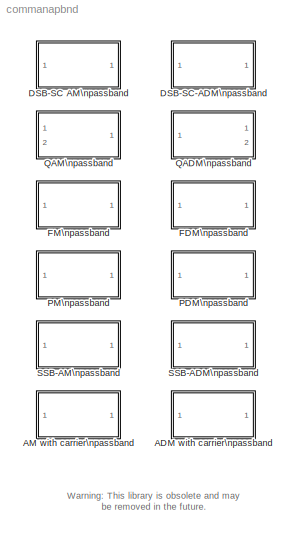
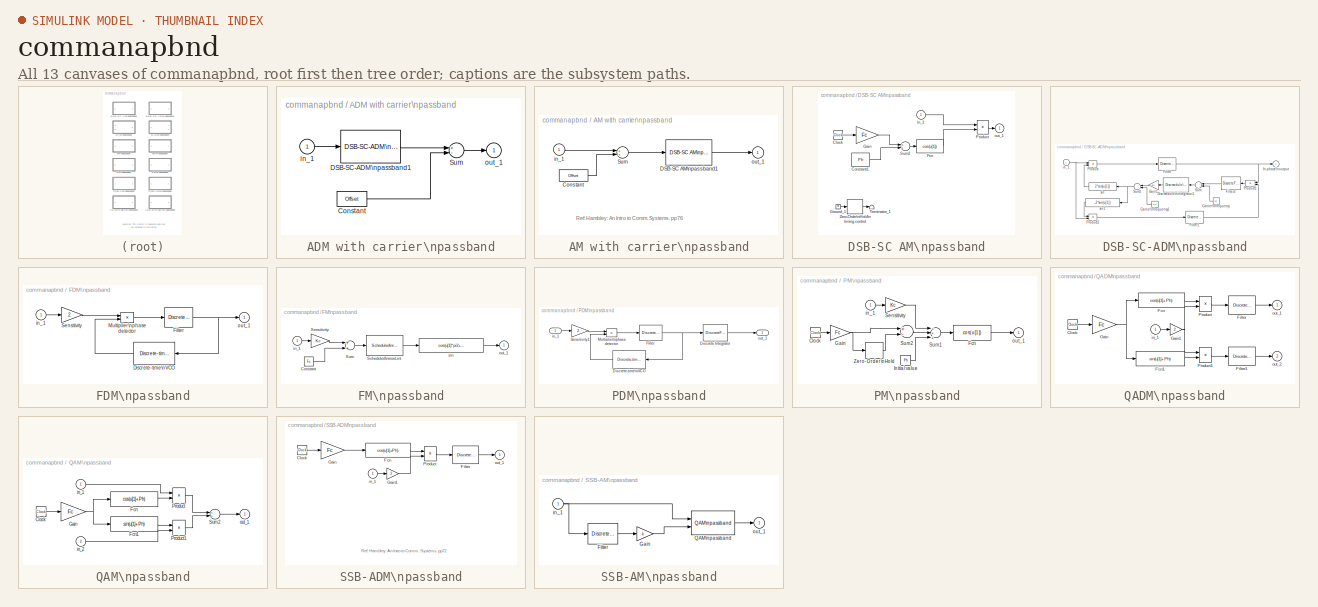
[diagram: thumbnail index - all 13 canvases of the model, root first then tree order]
MODEL commanapbnd
KIND library
BLOCK [SubSystem] ADM with carrier\npassband
  MaskCallbackString = |||||
  MaskDescription = Demodulate an AM with carrier modulated signal.
  MaskDisplay = plot(0,0,100,100,[5+4.5*[0:.3:10] 50 50 50 50+4.5*[0:10]],[85+10*[sin([0:.3:10]*pi/5).*sin([0:.3:10]*pi*2)] 85 99 75 10*sin([0:10]*pi/5)+85]);\ndisp('\\nPassband\\nADM w TC')
  MaskEnableString = on,on,on,on,on,on
  MaskHelp = This block demodulates a DSB-AM with carrier modulated signal. In order to recover the original signal, the offset parameter should be the same as the parameter in the modulation. The demodulation uses a discrete-time lowpass filter that passes the signal message and eliminates the carrier signal.
  MaskIconFrame = on
  MaskIconOpaque = on
  MaskIconRotate = none
  MaskIconUnits = autoscale
  MaskPromptString = Offset factor:|Carrier frequency (Hz):|Initial Phase (rad):|Lowpass filter numerator:|Lowpass filter denominator:|Sample time (sec):
  MaskStyleString = edit,edit,edit,edit,edit,edit
  MaskToolTipString = on,on,on,on,on,on
  MaskTunableValueString = on,on,on,on,on,on
  MaskType = Passband ADM with carrier
  MaskValueString = 1|100|0|[4.57 9.14 4.57]*.01|[1 -1.3108 .4936]|0.001
  MaskVarAliasString = ,,,,,
  MaskVariables = Offset=@1;Fc=@2;Ph=@3;num=@4;den=@5;ts=@6;
  MaskVisibilityString = on,on,on,on,on,on
  Ports = [1, 1]
  TreatAsAtomicUnit = off
BLOCK [Constant] ADM with carrier\npassband/Constant
  Value = Offset
BLOCK [Reference] ADM with carrier\npassband/DSB-SC-ADM\npassband1  REF=commanapbnd/DSB-SC-ADM\npassband
  MaskParam1 = Fc
  MaskParam2 = num
  MaskParam3 = den
  MaskParam4 = Ph
  MaskParam5 = ts
  Ports = [1, 1]
  SourceBlock = commanapbnd/DSB-SC-ADM\npassband
  SourceType = Passband DSB-SC ADM
BLOCK [Sum] ADM with carrier\npassband/Sum
  Inputs = +-
  Ports = [2, 1]
BLOCK [Inport] ADM with carrier\npassband/in_1
BLOCK [Outport] ADM with carrier\npassband/out_1
  InitialOutput = 0
BLOCK [SubSystem] AM with carrier\npassband
  MaskCallbackString = |||
  MaskDescription = Modulate the input signal using amplitude modulation with transmission carrier method.
  MaskDisplay = plot(0,0,100,100,[4.5*[0:10]+5 50 50 50 50+4.5*[0:.3:10]],[10*sin([0:10]*pi/5)+85 85 99 75 85+10*[sin([0:.3:10]*pi/5).*sin([0:.3:10]*pi*2)]]);\ndisp('\\nPassband\\nAM w TC')
  MaskEnableString = on,on,on,on
  MaskHelp = This block shifts the amplitude of the input signal before the modulation. AM with carrier is a simple technique but not an energy-efficient one.
  MaskIconFrame = on
  MaskIconOpaque = on
  MaskIconRotate = none
  MaskIconUnits = autoscale
  MaskPromptString = Input signal offset:|Carrier frequency (Hz):|Initial phase (rad):|Sample time (sec)
  MaskStyleString = edit,edit,edit,edit
  MaskToolTipString = on,on,on,on
  MaskTunableValueString = on,on,on,on
  MaskType = Passband AM with carrier
  MaskValueString = 1|100|0|0.001
  MaskVarAliasString = ,,,
  MaskVariables = Offset=@1;Fc=@2;Ph=@3;ts=@4;
  MaskVisibilityString = on,on,on,on
  Ports = [1, 1]
  TreatAsAtomicUnit = off
BLOCK [Constant] AM with carrier\npassband/Constant
  Value = Offset
BLOCK [Reference] AM with carrier\npassband/DSB-SC AM\npassband1  REF=commanapbnd/DSB-SC AM\npassband
  MaskParam1 = Fc
  MaskParam2 = Ph
  MaskParam3 = ts
  Ports = [1, 1]
  SourceBlock = commanapbnd/DSB-SC AM\npassband
  SourceType = Passband DSB-SC AM
BLOCK [Sum] AM with carrier\npassband/Sum
  Ports = [2, 1]
BLOCK [Inport] AM with carrier\npassband/in_1
BLOCK [Outport] AM with carrier\npassband/out_1
  InitialOutput = 0
BLOCK [SubSystem] DSB-SC AM\npassband
  MaskCallbackString = ||
  MaskDescription = Modulate the input signal using\nDSB-SC AM method.
  MaskDisplay = plot(0,0,100,100,[4.5*[0:10]+5 50 50 50 50+4.5*[0:.3:10]],[10*sin([0:10]*pi/5)+85 85 99 75 85+10*[sin([0:.3:10]*pi/5).*sin([0:.3:10]*pi*2)]]);\ndisp('\\nPassband\\nDSB AM')
  MaskEnableString = on,on,on
  MaskHelp = This block modulates the input signal using the double-sideband suppressed-carrier amplitude modulation. In general, the carrier frequency should be much higher than the message signal frequency.
  MaskIconFrame = on
  MaskIconOpaque = on
  MaskIconRotate = none
  MaskIconUnits = autoscale
  MaskInitialization = Fc=@1;Ph=@2;ts=@3;Fc=Fc*2*pi;\n\n
  MaskPromptString = Carrier frequency (Hz):|Initial Phase (rad):|Sample time (sec):
  MaskStyleString = edit,edit,edit
  MaskToolTipString = on,on,on
  MaskTunableValueString = on,on,on
  MaskType = Passband DSB-SC AM
  MaskValueString = 100|pi/2|0.001
  MaskVarAliasString = ,,
  MaskVisibilityString = on,on,on
  Ports = [1, 1]
  TreatAsAtomicUnit = off
BLOCK [Clock] DSB-SC AM\npassband/Clock
  Decimation = 10
BLOCK [Constant] DSB-SC AM\npassband/Constant1
  Value = Ph
BLOCK [Fcn] DSB-SC AM\npassband/Fcn
  Expr = cos(u[1])
BLOCK [Gain] DSB-SC AM\npassband/Gain
  Gain = Fc
BLOCK [Ground] DSB-SC AM\npassband/Ground_1
BLOCK [Product] DSB-SC AM\npassband/Product
  Ports = [2, 1]
BLOCK [Sum] DSB-SC AM\npassband/Sum2
  Ports = [2, 1]
BLOCK [Terminator] DSB-SC AM\npassband/Terminator_1
BLOCK [ZeroOrderHold] DSB-SC AM\npassband/Zero-Order\nHold\ntiming control
  SampleTime = ts
BLOCK [Inport] DSB-SC AM\npassband/in_1
BLOCK [Outport] DSB-SC AM\npassband/out_1
  InitialOutput = 0
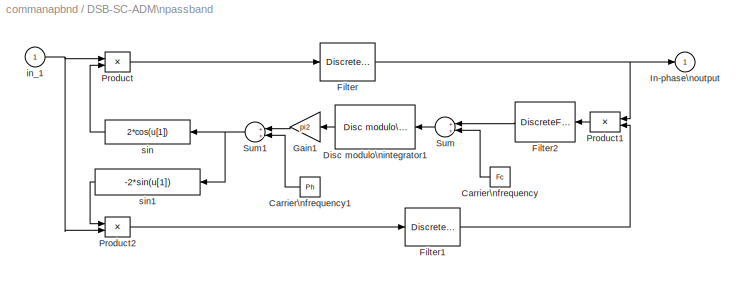
BLOCK [SubSystem] DSB-SC-ADM\npassband
  MaskCallbackString = ||||
  MaskDescription = Demodulate a DSB-SC AM modulated signal.
  MaskDisplay = plot(0,0,100,100,[5+4.5*[0:.3:10] 50 50 50 50+4.5*[0:10]],[85+10*[sin([0:.3:10]*pi/5).*sin([0:.3:10]*pi*2)] 85 99 75 10*sin([0:10]*pi/5)+85]);						\ndisp('\\nPassband\\nDSB ADM')
  MaskEnableString = on,on,on,on,on
  MaskHelp = This block demodulates a DSB-SC-AM modulated signal using Costas phase-locked loop method. This block uses a discrete-time lowpass filter that passes the signal message and eliminates the carrier signal.
  MaskIconFrame = on
  MaskIconOpaque = on
  MaskIconRotate = none
  MaskIconUnits = autoscale
  MaskInitialization = Fc=@1;num=@2;den=@3;Ph=@4;ts=@5;pi2=pi*2;\n\n\n
  MaskPromptString = Carrier frequency (Hz):|Lowpass filter numerator:|Lowpass filter denominator:|Initial phase (rad):|Sample time (sec):
  MaskStyleString = edit,edit,edit,edit,edit
  MaskToolTipString = on,on,on,on,on
  MaskTunableValueString = on,on,on,on,on
  MaskType = Passband DSB-SC ADM
  MaskValueString = 100|[4.57 9.14 4.57]*.01|[1 -1.3108 .4936]|pi/2|0.001
  MaskVarAliasString = ,,,,
  MaskVisibilityString = on,on,on,on,on
  Ports = [1, 1]
  TreatAsAtomicUnit = off
BLOCK [Constant] DSB-SC-ADM\npassband/Carrier\nfrequency
  MaskIconFrame = on
  MaskIconOpaque = on
  MaskIconRotate = none
  MaskIconUnits = autoscale
  Value = Fc
BLOCK [Constant] DSB-SC-ADM\npassband/Carrier\nfrequency1
  MaskIconFrame = on
  MaskIconOpaque = on
  MaskIconRotate = none
  MaskIconUnits = autoscale
  Value = Ph
BLOCK [Reference] DSB-SC-ADM\npassband/Disc modulo\nintegrator1  REF=commutil/Disc modulo\nintegrator
  Ports = [1, 1]
  SourceBlock = commutil/Disc modulo\nintegrator
  SourceType = Discrete-time modulo integrator
  init = 0
  modu = 1
  ts = ts
BLOCK [DiscreteFilter] DSB-SC-ADM\npassband/Filter
  Denominator = den
  Numerator = num
  SampleTime = ts
BLOCK [DiscreteFilter] DSB-SC-ADM\npassband/Filter1
  Denominator = den
  Numerator = num
  SampleTime = ts
BLOCK [DiscreteFilter] DSB-SC-ADM\npassband/Filter2
  Denominator = den
  MaskIconFrame = on
  MaskIconOpaque = on
  MaskIconRotate = none
  MaskIconUnits = autoscale
  Numerator = num
  SampleTime = ts
BLOCK [Gain] DSB-SC-ADM\npassband/Gain1
  Gain = pi2
  MaskIconFrame = on
  MaskIconOpaque = on
  MaskIconRotate = none
  MaskIconUnits = autoscale
BLOCK [Outport] DSB-SC-ADM\npassband/In-phase\noutput
  InitialOutput = 0
BLOCK [Product] DSB-SC-ADM\npassband/Product
  Ports = [2, 1]
BLOCK [Product] DSB-SC-ADM\npassband/Product1
  MaskIconFrame = on
  MaskIconOpaque = on
  MaskIconRotate = none
  MaskIconUnits = autoscale
  Ports = [2, 1]
BLOCK [Product] DSB-SC-ADM\npassband/Product2
  Ports = [2, 1]
BLOCK [Sum] DSB-SC-ADM\npassband/Sum
  MaskIconFrame = on
  MaskIconOpaque = on
  MaskIconRotate = none
  MaskIconUnits = autoscale
  Ports = [2, 1]
BLOCK [Sum] DSB-SC-ADM\npassband/Sum1
  MaskIconFrame = on
  MaskIconOpaque = on
  MaskIconRotate = none
  MaskIconUnits = autoscale
  Ports = [2, 1]
BLOCK [Inport] DSB-SC-ADM\npassband/in_1
BLOCK [Fcn] DSB-SC-ADM\npassband/sin
  Expr = 2*cos(u[1])
  MaskIconFrame = on
  MaskIconOpaque = on
  MaskIconRotate = none
  MaskIconUnits = autoscale
BLOCK [Fcn] DSB-SC-ADM\npassband/sin1
  Expr = -2*sin(u[1])
  MaskIconFrame = on
  MaskIconOpaque = on
  MaskIconRotate = none
  MaskIconUnits = autoscale
BLOCK [SubSystem] FDM\npassband
  MaskCallbackString = |||||
  MaskDescription = Demodulate an FM modulated signal using a phase-locked loop.
  MaskDisplay = plot(0,0,100,100,[5+4.5*[0:.15:10] 50 50 50 50+4.5*[0:10]],[85+10*[sin([0:.15:10]*pi*2+cumsum(sin([0:.15:10]*pi/5))/2)] 85 99 75   10*sin([0:10]*pi/5)+85]);\ndisp('\\nPassband\\nFDM')
  MaskEnableString = on,on,on,on,on,on
  MaskHelp = This block recovers a FM modulated signal using a phase-locked loop method. The phase detector used in this block is a multiplier.
  MaskIconFrame = on
  MaskIconOpaque = on
  MaskIconRotate = none
  MaskIconUnits = autoscale
  MaskInitialization = Ph=Ph+pi/2;\n\n
  MaskPromptString = Carrier frequency (Hz):|Initial phase (rad):|Modulation constant (Hertz per volt):|Lowpass filter numerator:|Lowpass filter denominator:|Sample time (sec):
  MaskStyleString = edit,edit,edit,edit,edit,edit
  MaskToolTipString = on,on,on,on,on,on
  MaskTunableValueString = on,on,on,on,on,on
  MaskType = Passband FDM
  MaskValueString = 100|0|1|[4.57 9.14 4.57]*.01|[1 -1.3108 .4936]|0.001
  MaskVarAliasString = ,,,,,
  MaskVariables = Fc=@1;Ph=@2;HzPerVolt=@3;num=@4;den=@5;ts=@6;
  MaskVisibilityString = on,on,on,on,on,on
  Ports = [1, 1]
  TreatAsAtomicUnit = off
BLOCK [Reference] FDM\npassband/Discrete-time\nVCO  REF=commutil/Discrete-time\nVCO
  Ac = 1
  Fc = Fc
  Kc = HzPerVolt
  Ph = Ph
  Ports = [1, 1]
  SourceBlock = commutil/Discrete-time\nVCO
  SourceType = Voltage-controlled oscillator
  ts = ts
BLOCK [DiscreteFilter] FDM\npassband/Filter
  Denominator = den
  Numerator = num
  SampleTime = ts
BLOCK [Product] FDM\npassband/Multiplier\nphase detector
  Ports = [2, 1]
BLOCK [Gain] FDM\npassband/Sensitivity
  Gain = 2
BLOCK [Inport] FDM\npassband/in_1
BLOCK [Outport] FDM\npassband/out_1
  InitialOutput = 0
BLOCK [SubSystem] FM\npassband
  MaskCallbackString = ||||
  MaskDescription = Modulate the input signal using FM method.
  MaskDisplay = plot(0,0,100,100,[4.5*[0:10]+5 50 50 50 50+4.5*[0:.15:10]],[10*sin([0:10]*pi/5)+85 85 99 75 85+10*[sin([0:.15:10]*pi*2+cumsum(sin([0:.15:10]*pi/5))/2)]]);\ndisp('\\nPassband\\nFM')
  MaskEnableString = on,on,on,on,on
  MaskHelp = This block modulates the input signal using frequency modulation method. The frequency of the output of the carrier signal depends on the amplitude of the input signal.
  MaskIconFrame = on
  MaskIconOpaque = on
  MaskIconRotate = none
  MaskIconUnits = autoscale
  MaskInitialization = Kc=HzPerV;pi2=2*pi;if isinf(td),td=realmax;end;\n
  MaskPromptString = Carrier frequency (Hz):|Initial phase (rad):|Modulation constant (Hertz per volt):|Sample time (sec):|Symbol interval (sec; Use Inf for analog mod);
  MaskStyleString = edit,edit,edit,edit,edit
  MaskToolTipString = on,on,on,on,on
  MaskTunableValueString = on,on,on,on,on
  MaskType = Passband FM
  MaskValueString = 100|0|1|0.001|Inf
  MaskVarAliasString = ,,,,
  MaskVariables = Fc=@1;Ph=@2;HzPerV=@3;ts=@4;td=@5;
  MaskVisibilityString = on,on,on,on,on
  Ports = [1, 1]
  TreatAsAtomicUnit = off
BLOCK [Constant] FM\npassband/Constant
  Value = Fc
BLOCK [Reference] FM\npassband/Scheduled\nreset-int  REF=commutil/Scheduled\nreset-int
  Ports = [1, 1]
  SourceBlock = commutil/Scheduled\nreset-int
  SourceType = Scheduled reset integration
  limit = Inf/2
  td = td
  ts = ts
BLOCK [Gain] FM\npassband/Sensitivity
  Gain = Kc
BLOCK [Sum] FM\npassband/Sum
  Ports = [2, 1]
BLOCK [Inport] FM\npassband/in_1
BLOCK [Outport] FM\npassband/out_1
  InitialOutput = 0
BLOCK [Fcn] FM\npassband/sin
  Expr = cos(u[1]*pi2+Ph)
BLOCK [SubSystem] PDM\npassband
  MaskCallbackString = ||||||
  MaskDescription = Demodulate a PM modulated signal using a phase locked loop.
  MaskDisplay = plot(0,0,100,100,[5+4.5*[0:.15:10] 50 50 50 50+4.5*[0:10]],[85+10*[sin([0:.15:10]*pi*2+cumsum(sin([0:.15:10]*pi/5))/2)] 85 99 75   10*sin([0:10]*pi/5)+85]);\ndisp('\\nPassband\\nPDM')
  MaskEnableString = on,on,on,on,on,on,on
  MaskHelp = This block recovers a PM modulated signal. This block uses a multiplier phase detector in PLL. This block uses a discrete-time lowpass filter which passes the signal message and eliminates the carrier signal.
  MaskIconFrame = on
  MaskIconOpaque = on
  MaskIconRotate = none
  MaskIconUnits = autoscale
  MaskInitialization = Ph=Ph+pi/2;\nKv=2*pi*HzPerVolt;\n
  MaskPromptString = Carrier frequency (Hz):|Initial phase (rad):|Modulation constant (Radians per volt):|Lowpass filter numerator:|Lowpass filter denominator:|VCO Gain (Hertz per volt):|Sample time (sec):
  MaskStyleString = edit,edit,edit,edit,edit,edit,edit
  MaskToolTipString = on,on,on,on,on,on,on
  MaskTunableValueString = on,on,on,on,on,on,on
  MaskType = Passband PDM
  MaskValueString = 100|0|1|[4.57 9.14 4.57]*.01|[1 -1.3108 .4936]|1|0.001
  MaskVarAliasString = ,,,,,,
  MaskVariables = Fc=@1;Ph=@2;Kc=@3;num=@4;den=@5;HzPerVolt=@6;ts=@7;
  MaskVisibilityString = on,on,on,on,on,on,on
  Ports = [1, 1]
  TreatAsAtomicUnit = off
BLOCK [DiscreteFilter] PDM\npassband/Discrete Integrator
  Denominator = [1 -1]*Kc
  Numerator = Kv*ts(1)
  SampleTime = ts
BLOCK [Reference] PDM\npassband/Discrete-time\nVCO  REF=commutil/Discrete-time\nVCO
  Ac = 1
  Fc = Fc
  Kc = HzPerVolt
  Ph = Ph
  Ports = [1, 1]
  SourceBlock = commutil/Discrete-time\nVCO
  SourceType = Voltage-controlled oscillator
  ts = ts
BLOCK [DiscreteFilter] PDM\npassband/Filter
  Denominator = den
  Numerator = num
  SampleTime = ts
BLOCK [Product] PDM\npassband/Multiplier\nphase detector
  Ports = [2, 1]
BLOCK [Gain] PDM\npassband/Sensitivity1
  Gain = 2
BLOCK [Inport] PDM\npassband/in_1
BLOCK [Outport] PDM\npassband/out_1
  InitialOutput = 0
BLOCK [SubSystem] PM\npassband
  MaskCallbackString = |||
  MaskDescription = Modulate the input signal using PM method.
  MaskDisplay = plot(0,0,100,100,[4.5*[0:10]+5 50 50 50 50+4.5*[0:.15:10]],[10*sin([0:10]*pi/5)+85 85 99 75 85+10*[sin([0:.15:10]*pi*2+cumsum(sin([0:.15:10]*pi/5))/2)]]);\ndisp('\\nPassband\\nPM')
  MaskEnableString = on,on,on,on
  MaskHelp = The PM block causes the change of the carrier signal depending on the input signal voltage.
  MaskIconFrame = on
  MaskIconOpaque = on
  MaskIconRotate = none
  MaskIconUnits = autoscale
  MaskInitialization = Fc=Fc*2*pi;if isinf(td),td=realmax;end;\n
  MaskPromptString = Carrier frequency (Hz):|Initial phase (rad):|Modulation constant (Radians per volt):|Symbol interval (sec, Use inf for analog case):
  MaskStyleString = edit,edit,edit,edit
  MaskToolTipString = on,on,on,on
  MaskTunableValueString = on,on,on,on
  MaskType = Passband PM
  MaskValueString = 100|0|1|Inf
  MaskVarAliasString = ,,,
  MaskVariables = Fc=@1;Ph=@2;Kc=@3;td=@4;
  MaskVisibilityString = on,on,on,on
  Ports = [1, 1]
  TreatAsAtomicUnit = off
BLOCK [Clock] PM\npassband/Clock
  Decimation = 10
BLOCK [Fcn] PM\npassband/Fcn
  Expr = cos(u[1])
BLOCK [Gain] PM\npassband/Gain
  Gain = Fc
BLOCK [Constant] PM\npassband/Initial value
  Value = Ph
BLOCK [Gain] PM\npassband/Sensitivity
  Gain = Kc
BLOCK [Sum] PM\npassband/Sum1
  Inputs = +++
  Ports = [3, 1]
BLOCK [Sum] PM\npassband/Sum2
  Inputs = +-
  Ports = [2, 1]
BLOCK [ZeroOrderHold] PM\npassband/Zero-Order\nHold
  SampleTime = td
BLOCK [Inport] PM\npassband/in_1
BLOCK [Outport] PM\npassband/out_1
  InitialOutput = 0
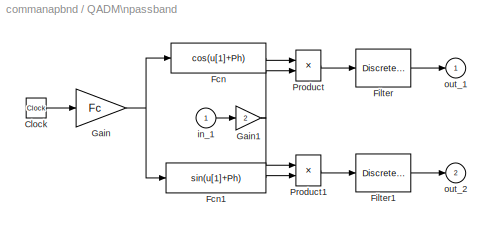
BLOCK [SubSystem] QADM\npassband
  MaskCallbackString = ||||
  MaskDescription = Demodulate a DSB-SC QAM modulated signal into in-phase and quadrature components.
  MaskDisplay = plot(0,0,100,100,[5+4.5*[0:.3:10] 50 50 50 50+4.5*[0:10]],[85+10*[sin([0:.3:10]*pi/5).*sin([0:.3:10]*pi*2)] 85 99 75 10*sin([0:10]*pi/5)+85]);\ndisp('\\nPassband\\nQADM')
  MaskEnableString = on,on,on,on,on
  MaskHelp = This block demodulates the QM-DSB-SC-AM modulated signal. The first output port outputs the in-phase component and the second port outputs the quadrature component. The demodulation uses a discrete-time lowpass filter that passes the signal message and eliminates the carrier signal.
  MaskIconFrame = on
  MaskIconOpaque = on
  MaskIconRotate = none
  MaskIconUnits = autoscale
  MaskInitialization = Fc=Fc*2*pi;\n
  MaskPromptString = Carrier frequency (Hz):|Lowpass filter numerator:|Lowpass filter denominator:|Initial phase (rad):|Sample time (sec):
  MaskStyleString = edit,edit,edit,edit,edit
  MaskToolTipString = on,on,on,on,on
  MaskTunableValueString = on,on,on,on,on
  MaskType = Passband DSB-SC QADM
  MaskValueString = 100|[4.57 9.14 4.57]*.01|[1 -1.3108 .4936]|0|0.001
  MaskVarAliasString = ,,,,
  MaskVariables = Fc=@1;num=@2;den=@3;Ph=@4;ts=@5;
  MaskVisibilityString = on,on,on,on,on
  Ports = [1, 2]
  TreatAsAtomicUnit = off
BLOCK [Clock] QADM\npassband/Clock
  Decimation = 10
BLOCK [Fcn] QADM\npassband/Fcn
  Expr = cos(u[1]+Ph)
BLOCK [Fcn] QADM\npassband/Fcn1
  Expr = sin(u[1]+Ph)
BLOCK [DiscreteFilter] QADM\npassband/Filter
  Denominator = den
  Numerator = num
  SampleTime = ts
BLOCK [DiscreteFilter] QADM\npassband/Filter1
  Denominator = den
  Numerator = num
  SampleTime = ts
BLOCK [Gain] QADM\npassband/Gain
  Gain = Fc
BLOCK [Gain] QADM\npassband/Gain1
  Gain = 2
BLOCK [Product] QADM\npassband/Product
  Ports = [2, 1]
BLOCK [Product] QADM\npassband/Product1
  Ports = [2, 1]
BLOCK [Inport] QADM\npassband/in_1
BLOCK [Outport] QADM\npassband/out_1
  InitialOutput = 0
BLOCK [Outport] QADM\npassband/out_2
  InitialOutput = 0
  Port = 2
BLOCK [SubSystem] QAM\npassband
  MaskCallbackString = ||
  MaskDescription = Modulate the in-phase signal from first input port and quadrature signal from the second port using QAM.
  MaskDisplay = plot(0,0,100,100,[4.5*[0:10]+5 50 50 50 50+4.5*[0:.3:10]],[10*sin([0:10]*pi/5)+85 85 99 75 85+10*[sin([0:.3:10]*pi/5).*sin([0:.3:10]*pi*2)]]);\ndisp('\\nPassband\\nQAM')
  MaskEnableString = on,on,on
  MaskHelp = This block modulates the in-phase component input from the first port and the quadrature component input from the second port by using two orthogonal sinusoidal carriers.
  MaskIconFrame = on
  MaskIconOpaque = on
  MaskIconRotate = none
  MaskIconUnits = autoscale
  MaskInitialization = Fc=Fc*2*pi;\n\n\n
  MaskPromptString = Carrier frequency (Hz):|Initial phase (rad):|Sample time (sec):
  MaskStyleString = edit,edit,edit
  MaskToolTipString = on,on,on
  MaskTunableValueString = on,on,on
  MaskType = Passband DSB-SC QAM
  MaskValueString = 100|0|0.001
  MaskVarAliasString = ,,
  MaskVariables = Fc=@1;Ph=@2;ts=@3;
  MaskVisibilityString = on,on,on
  Ports = [2, 1]
  TreatAsAtomicUnit = off
BLOCK [Clock] QAM\npassband/Clock
  Decimation = 10
BLOCK [Fcn] QAM\npassband/Fcn
  Expr = cos(u[1]+Ph)
BLOCK [Fcn] QAM\npassband/Fcn1
  Expr = sin(u[1]+Ph)
BLOCK [Gain] QAM\npassband/Gain
  Gain = Fc
BLOCK [Product] QAM\npassband/Product
  Ports = [2, 1]
BLOCK [Product] QAM\npassband/Product1
  Ports = [2, 1]
BLOCK [Sum] QAM\npassband/Sum2
  Ports = [2, 1]
BLOCK [Inport] QAM\npassband/in_1
BLOCK [Inport] QAM\npassband/in_2
  Port = 2
BLOCK [Outport] QAM\npassband/out_1
  InitialOutput = 0
BLOCK [SubSystem] SSB-ADM\npassband
  MaskCallbackString = ||||
  MaskDescription = Demodulate a SSB-AM modulated signal.
  MaskDisplay = plot(0,0,100,100,[5+4.5*[0:.3:10] 50 50 50 50+4.5*[0:10]],[85+10*[sin([0:.3:10]*pi/5).*sin([0:.3:10]*pi*2)] 85 99 75 10*sin([0:10]*pi/5)+85]);\ndisp('\\nPassband\\nSSB ADM')
  MaskEnableString = on,on,on,on,on
  MaskHelp = This block demodulates the SSB-SC-AM modulated signal. The demodulation uses a discrete-time lowpass filter that passes the signal message and eliminates the carrier signal. You can specify the modulation to be a USB or LSB modulation.
  MaskIconFrame = on
  MaskIconOpaque = on
  MaskIconRotate = none
  MaskIconUnits = autoscale
  MaskInitialization = Fc=@1;num=@2;den=@3;Ph=@4;ts=@5;Fc=Fc*2*pi;Pg=Ph+pi/2;\n
  MaskPromptString = Carrier frequency (Hz):|Lowpass filter numerator:|Lowpass filter denominator:|Initial phase (rad):|Sample time (sec):
  MaskStyleString = edit,edit,edit,edit,edit
  MaskToolTipString = on,on,on,on,on
  MaskTunableValueString = on,on,on,on,on
  MaskType = Passband SSB ADM
  MaskValueString = 100|[4.57 9.14 4.57]*.01|[1 -1.3108 .4936]|0|0.001
  MaskVarAliasString = ,,,,
  MaskVisibilityString = on,on,on,on,on
  Ports = [1, 1]
  TreatAsAtomicUnit = off
BLOCK [Clock] SSB-ADM\npassband/Clock
  Decimation = 10
BLOCK [Fcn] SSB-ADM\npassband/Fcn
  Expr = cos(u[1]+Ph)
BLOCK [DiscreteFilter] SSB-ADM\npassband/Filter
  Denominator = den
  Numerator = num
  SampleTime = ts
BLOCK [Gain] SSB-ADM\npassband/Gain
  Gain = Fc
BLOCK [Gain] SSB-ADM\npassband/Gain1
  Gain = 2
BLOCK [Product] SSB-ADM\npassband/Product
  Ports = [2, 1]
BLOCK [Inport] SSB-ADM\npassband/in_1
BLOCK [Outport] SSB-ADM\npassband/out_1
  InitialOutput = 0
BLOCK [SubSystem] SSB-AM\npassband
  MaskCallbackString = |||||
  MaskDescription = Modulate the input signal using single-sideband amplitude modulation method with Hilbert transform filter.
  MaskDisplay = plot(0,0,100,100,[4.5*[0:10]+5 50 50 50 50+4.5*[0:.3:10]],[10*sin([0:10]*pi/5)+85 85 99 75 85+10*[sin([0:.3:10]*pi/5).*sin([0:.3:10]*pi*2)]]);\ndisp('\\nPassband\\nSSB AM')
  MaskEnableString = on,on,on,on,on,on
  MaskHelp = This block modulates the input signal using the SSB-AM method. The block uses Hilbert transfer filter. Hilbert transform filter is a non-causal filter. A positive time delay is requested in the implementation. You can specify the modulation to be an USB or LSB modulation.
  MaskIconFrame = on
  MaskIconOpaque = on
  MaskIconRotate = none
  MaskIconUnits = autoscale
  MaskInitialization = if ban>1/ts, ban=1/ts-ts;end;[num,den]=hilbiir(ts,dly,ban);pi2=2*pi;pih=pi/2;k=-1;if sd(1)=='l',k=1;end;\n
  MaskPromptString = Carrier frequency (Hz):|Initial Phase (rad):|Bandwidth of the input signal (Hz):|Time delay for Hilbert transform filter (sec):|Sample time (sec):|\"upper\" sideband or \"lower\" sideband:
  MaskStyleString = edit,edit,edit,edit,edit,edit
  MaskToolTipString = on,on,on,on,on,on
  MaskTunableValueString = on,on,on,on,on,on
  MaskType = Passband SSB-AM
  MaskValueString = 100|0|1/.01/10|0.01|0.001|'upper'
  MaskVarAliasString = ,,,,,
  MaskVariables = Fc=@1;Ph=@2;ban=@3;dly=@4;ts=@5;sd=@6;
  MaskVisibilityString = on,on,on,on,on,on
  Ports = [1, 1]
  TreatAsAtomicUnit = off
BLOCK [DiscreteFilter] SSB-AM\npassband/Filter
  Denominator = den
  Numerator = num
  SampleTime = ts
BLOCK [Gain] SSB-AM\npassband/Gain
  Gain = k
BLOCK [Reference] SSB-AM\npassband/QAM\npassband  REF=commanapbnd/QAM\npassband
  Fc = Fc
  Ph = Ph
  Ports = [2, 1]
  SourceBlock = commanapbnd/QAM\npassband
  SourceType = Passband DSB-SC QAM
  ts = ts
BLOCK [Inport] SSB-AM\npassband/in_1
BLOCK [Outport] SSB-AM\npassband/out_1
  InitialOutput = 0
ANNOTATION (root): Warning: This library is obsolete and may\nbe removed in the future.
ANNOTATION AM with carrier\npassband: Ref: Hambley: An Intro to Comm. Systems. pp76
ANNOTATION SSB-ADM\npassband: Ref: Hambley: An Intro to Comm. Systems. pp72
LINE ADM with carrier\npassband/Constant:1 -> ADM with carrier\npassband/Sum:2
LINE ADM with carrier\npassband/DSB-SC-ADM\npassband1:1 -> ADM with carrier\npassband/Sum:1
LINE ADM with carrier\npassband/Sum:1 -> ADM with carrier\npassband/out_1:1
LINE ADM with carrier\npassband/in_1:1 -> ADM with carrier\npassband/DSB-SC-ADM\npassband1:1
LINE AM with carrier\npassband/Constant:1 -> AM with carrier\npassband/Sum:2
LINE AM with carrier\npassband/DSB-SC AM\npassband1:1 -> AM with carrier\npassband/out_1:1
LINE AM with carrier\npassband/Sum:1 -> AM with carrier\npassband/DSB-SC AM\npassband1:1
LINE AM with carrier\npassband/in_1:1 -> AM with carrier\npassband/Sum:1
LINE DSB-SC AM\npassband/Clock:1 -> DSB-SC AM\npassband/Gain:1
LINE DSB-SC AM\npassband/Constant1:1 -> DSB-SC AM\npassband/Sum2:2
LINE DSB-SC AM\npassband/Fcn:1 -> DSB-SC AM\npassband/Product:2
LINE DSB-SC AM\npassband/Gain:1 -> DSB-SC AM\npassband/Sum2:1
LINE DSB-SC AM\npassband/Ground_1:1 -> DSB-SC AM\npassband/Zero-Order\nHold\ntiming control:1
LINE DSB-SC AM\npassband/Product:1 -> DSB-SC AM\npassband/out_1:1
LINE DSB-SC AM\npassband/Sum2:1 -> DSB-SC AM\npassband/Fcn:1
LINE DSB-SC AM\npassband/Zero-Order\nHold\ntiming control:1 -> DSB-SC AM\npassband/Terminator_1:1
LINE DSB-SC AM\npassband/in_1:1 -> DSB-SC AM\npassband/Product:1
LINE DSB-SC-ADM\npassband/Carrier\nfrequency1:1 -> DSB-SC-ADM\npassband/Sum1:2
LINE DSB-SC-ADM\npassband/Carrier\nfrequency:1 -> DSB-SC-ADM\npassband/Sum:2
LINE DSB-SC-ADM\npassband/Disc modulo\nintegrator1:1 -> DSB-SC-ADM\npassband/Gain1:1
LINE DSB-SC-ADM\npassband/Filter1:1 -> DSB-SC-ADM\npassband/Product1:2
LINE DSB-SC-ADM\npassband/Filter2:1 -> DSB-SC-ADM\npassband/Sum:1
NET DSB-SC-ADM\npassband/Filter:1 -> DSB-SC-ADM\npassband/In-phase\noutput:1, DSB-SC-ADM\npassband/Product1:1
LINE DSB-SC-ADM\npassband/Gain1:1 -> DSB-SC-ADM\npassband/Sum1:1
LINE DSB-SC-ADM\npassband/Product1:1 -> DSB-SC-ADM\npassband/Filter2:1
LINE DSB-SC-ADM\npassband/Product2:1 -> DSB-SC-ADM\npassband/Filter1:1
LINE DSB-SC-ADM\npassband/Product:1 -> DSB-SC-ADM\npassband/Filter:1
NET DSB-SC-ADM\npassband/Sum1:1 -> DSB-SC-ADM\npassband/sin1:1, DSB-SC-ADM\npassband/sin:1
LINE DSB-SC-ADM\npassband/Sum:1 -> DSB-SC-ADM\npassband/Disc modulo\nintegrator1:1
NET DSB-SC-ADM\npassband/in_1:1 -> DSB-SC-ADM\npassband/Product2:2, DSB-SC-ADM\npassband/Product:1
LINE DSB-SC-ADM\npassband/sin1:1 -> DSB-SC-ADM\npassband/Product2:1
LINE DSB-SC-ADM\npassband/sin:1 -> DSB-SC-ADM\npassband/Product:2
LINE FDM\npassband/Discrete-time\nVCO:1 -> FDM\npassband/Multiplier\nphase detector:2
NET FDM\npassband/Filter:1 -> FDM\npassband/Discrete-time\nVCO:1, FDM\npassband/out_1:1
LINE FDM\npassband/Multiplier\nphase detector:1 -> FDM\npassband/Filter:1
LINE FDM\npassband/Sensitivity:1 -> FDM\npassband/Multiplier\nphase detector:1
LINE FDM\npassband/in_1:1 -> FDM\npassband/Sensitivity:1
LINE FM\npassband/Constant:1 -> FM\npassband/Sum:2
LINE FM\npassband/Scheduled\nreset-int:1 -> FM\npassband/sin:1
LINE FM\npassband/Sensitivity:1 -> FM\npassband/Sum:1
LINE FM\npassband/Sum:1 -> FM\npassband/Scheduled\nreset-int:1
LINE FM\npassband/in_1:1 -> FM\npassband/Sensitivity:1
LINE FM\npassband/sin:1 -> FM\npassband/out_1:1
LINE PDM\npassband/Discrete Integrator:1 -> PDM\npassband/out_1:1
LINE PDM\npassband/Discrete-time\nVCO:1 -> PDM\npassband/Multiplier\nphase detector:2
NET PDM\npassband/Filter:1 -> PDM\npassband/Discrete Integrator:1, PDM\npassband/Discrete-time\nVCO:1
LINE PDM\npassband/Multiplier\nphase detector:1 -> PDM\npassband/Filter:1
LINE PDM\npassband/Sensitivity1:1 -> PDM\npassband/Multiplier\nphase detector:1
LINE PDM\npassband/in_1:1 -> PDM\npassband/Sensitivity1:1
LINE PM\npassband/Clock:1 -> PM\npassband/Gain:1
LINE PM\npassband/Fcn:1 -> PM\npassband/out_1:1
NET PM\npassband/Gain:1 -> PM\npassband/Sum2:1, PM\npassband/Zero-Order\nHold:1
LINE PM\npassband/Initial value:1 -> PM\npassband/Sum1:3
LINE PM\npassband/Sensitivity:1 -> PM\npassband/Sum1:1
LINE PM\npassband/Sum1:1 -> PM\npassband/Fcn:1
LINE PM\npassband/Sum2:1 -> PM\npassband/Sum1:2
LINE PM\npassband/Zero-Order\nHold:1 -> PM\npassband/Sum2:2
LINE PM\npassband/in_1:1 -> PM\npassband/Sensitivity:1
LINE QADM\npassband/Clock:1 -> QADM\npassband/Gain:1
LINE QADM\npassband/Fcn1:1 -> QADM\npassband/Product1:2
LINE QADM\npassband/Fcn:1 -> QADM\npassband/Product:1
LINE QADM\npassband/Filter1:1 -> QADM\npassband/out_2:1
LINE QADM\npassband/Filter:1 -> QADM\npassband/out_1:1
NET QADM\npassband/Gain1:1 -> QADM\npassband/Product1:1, QADM\npassband/Product:2
NET QADM\npassband/Gain:1 -> QADM\npassband/Fcn1:1, QADM\npassband/Fcn:1
LINE QADM\npassband/Product1:1 -> QADM\npassband/Filter1:1
LINE QADM\npassband/Product:1 -> QADM\npassband/Filter:1
LINE QADM\npassband/in_1:1 -> QADM\npassband/Gain1:1
LINE QAM\npassband/Clock:1 -> QAM\npassband/Gain:1
LINE QAM\npassband/Fcn1:1 -> QAM\npassband/Product1:1
LINE QAM\npassband/Fcn:1 -> QAM\npassband/Product:2
NET QAM\npassband/Gain:1 -> QAM\npassband/Fcn1:1, QAM\npassband/Fcn:1
LINE QAM\npassband/Product1:1 -> QAM\npassband/Sum2:2
LINE QAM\npassband/Product:1 -> QAM\npassband/Sum2:1
LINE QAM\npassband/Sum2:1 -> QAM\npassband/out_1:1
LINE QAM\npassband/in_1:1 -> QAM\npassband/Product:1
LINE QAM\npassband/in_2:1 -> QAM\npassband/Product1:2
LINE SSB-ADM\npassband/Clock:1 -> SSB-ADM\npassband/Gain:1
LINE SSB-ADM\npassband/Fcn:1 -> SSB-ADM\npassband/Product:1
LINE SSB-ADM\npassband/Filter:1 -> SSB-ADM\npassband/out_1:1
LINE SSB-ADM\npassband/Gain1:1 -> SSB-ADM\npassband/Product:2
LINE SSB-ADM\npassband/Gain:1 -> SSB-ADM\npassband/Fcn:1
LINE SSB-ADM\npassband/Product:1 -> SSB-ADM\npassband/Filter:1
LINE SSB-ADM\npassband/in_1:1 -> SSB-ADM\npassband/Gain1:1
LINE SSB-AM\npassband/Filter:1 -> SSB-AM\npassband/Gain:1
LINE SSB-AM\npassband/Gain:1 -> SSB-AM\npassband/QAM\npassband:2
LINE SSB-AM\npassband/QAM\npassband:1 -> SSB-AM\npassband/out_1:1
NET SSB-AM\npassband/in_1:1 -> SSB-AM\npassband/Filter:1, SSB-AM\npassband/QAM\npassband:1
note: NET lines group one-source signal fan-out (src -> all destinations, sorted); 1:1 wires keep LINE
